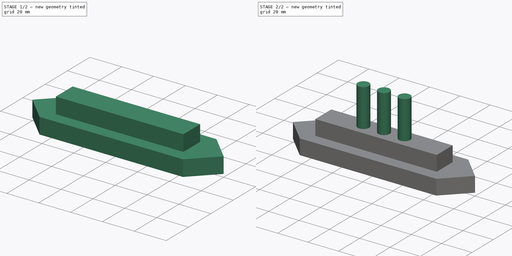
[diagram: build sequence overview — one tinted view per stage of 2, left to right]
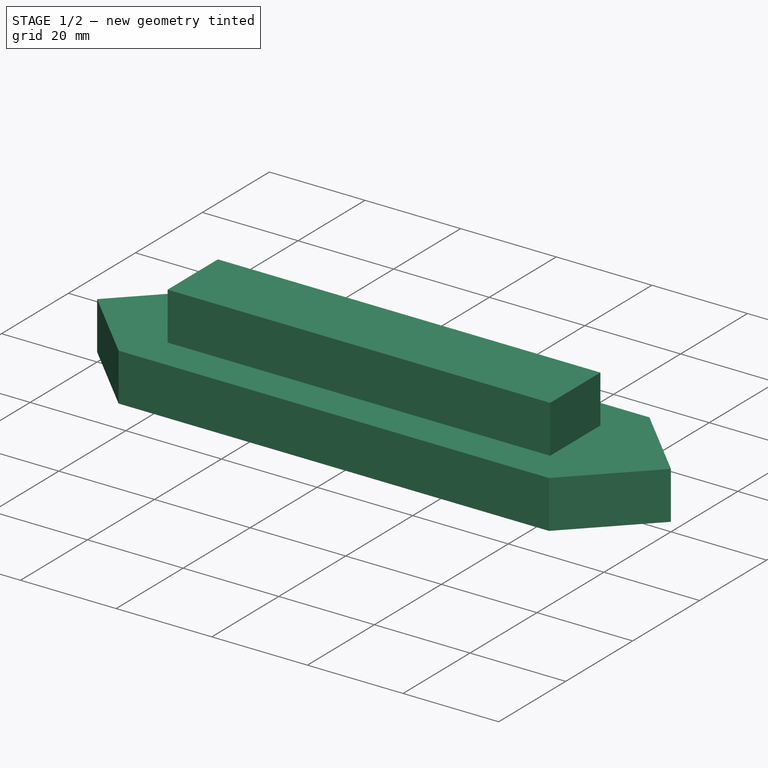
[diagram: stage 1 of 2 — iso view after this stage's code; geometry added in this stage tinted green]
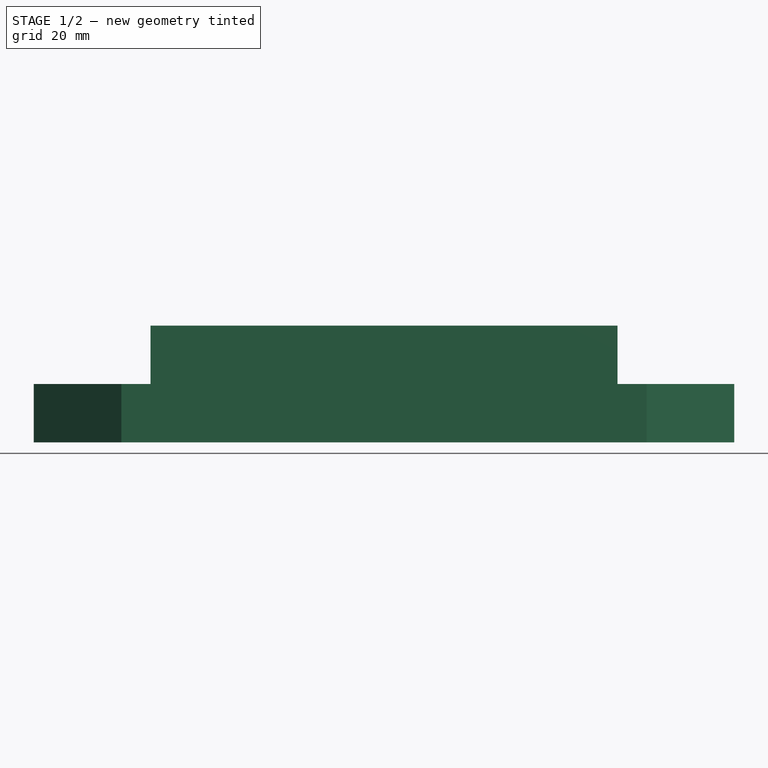
[diagram: stage 1 of 2 — front view after this stage's code; geometry added in this stage tinted green]
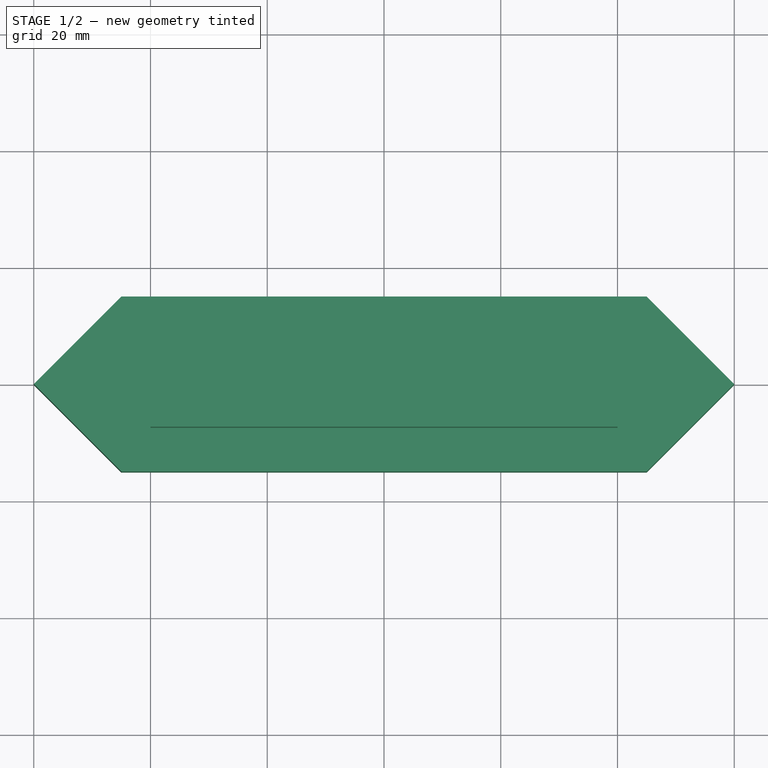
[diagram: stage 1 of 2 — top view after this stage's code; geometry added in this stage tinted green]
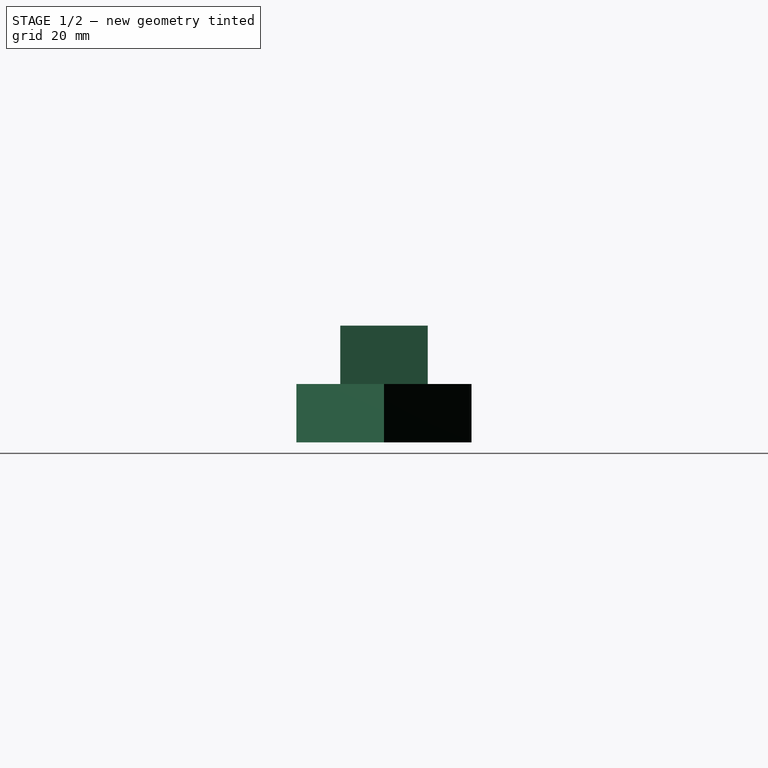
[diagram: stage 1 of 2 — right view after this stage's code; geometry added in this stage tinted green]
FCSTD DOCUMENT  (FreeCAD 1.1R38926 (Git))
Label: Кораблик
License: All rights reserved
LicenseURL: https://en.wikipedia.org/wiki/All_rights_reserved
objects: Sketcher::SketchObject×3, PartDesign::Pad×2, PartDesign::Pocket×1, PartDesign::Body×1
note: 16 computed .brp shape members not serialized (recipe doc carries the construction recipe); baked Part::Feature solids carry a one-line shape summary decoded from their .brp

FEATURE [Sketcher::SketchObject] Sketch
  ArcFitTolerance = 1e-06
  AttachmentSupport = -> [XY_Plane]
  FullyConstrained = false
  MakeInternals = false
  MapMode = 5
  sketch-geometry (8):
    g0: LineSegment StartX=-45 StartY=15 StartZ=0 EndX=-60 EndY=1.8e-15 EndZ=0
    g1: LineSegment StartX=-60 StartY=0 StartZ=0 EndX=-45 EndY=-15 EndZ=0
    g2: LineSegment StartX=-45 StartY=-15 StartZ=0 EndX=45 EndY=-15 EndZ=0
    g3: LineSegment StartX=45 StartY=-15 StartZ=0 EndX=60 EndY=0 EndZ=0
    g4: LineSegment StartX=60 StartY=0 StartZ=0 EndX=45 EndY=15 EndZ=0
    g5: LineSegment StartX=45 StartY=15 StartZ=0 EndX=-45 EndY=15 EndZ=0
    g6: LineSegment [constr] StartX=-45 StartY=15 StartZ=0 EndX=-88.88 EndY=15 EndZ=0
    g7: GeomPoint [constr] X=0 Y=0 Z=0
  constraints (20):
    c: Coincident(g0,g1)
    c: Coincident(g1,g2)
    c: Coincident(g2,g3)
    c: Coincident(g3,g4)
    c: Coincident(g4,g5)
    c: Coincident(g5,g0)
    c: Horizontal(g5)
    c: Horizontal(g2)
    c: Equal(g2,g5)
    c: Vertical(g1,g0)
    c: Horizontal(g3,g0)
    c: Equal(g4,g0)
    c: Equal(g0,g1)
    c: Coincident(g6,g0)
    c: Horizontal(g6)
    c: Angle(g6,g0) = 0.785398
    c: DistanceY(g1,g0) = 30
    c: DistanceX(g0,g3) = 120
    c: Symmetric(g0,g3,g7)
    c: Coincident(g7,g-1)
FEATURE [PartDesign::Pad] Pad
  Direction = (0,0,1)
  Length = 20
  Length2 = 10
  Profile = -> Sketch
  ReferenceAxis = -> Sketch [N_Axis]
  Refine = true
  Suppressed = false
  Type = 0
FEATURE [Sketcher::SketchObject] Sketch001
  ArcFitTolerance = 1e-06
  AttachmentSupport = -> [Pad]
  ExternalGeometry = -> [Pad]
  FullyConstrained = true
  MakeInternals = false
  MapMode = 5
  Placement = pos=(0,0,20) rot=(0,0,1;0rad)
  sketch-geometry (10):
    g0: LineSegment StartX=-45 StartY=15 StartZ=0 EndX=45 EndY=15 EndZ=0
    g1: LineSegment StartX=45 StartY=15 StartZ=0 EndX=60 EndY=0 EndZ=0
    g2: LineSegment StartX=60 StartY=0 StartZ=0 EndX=45 EndY=-15 EndZ=0
    g3: LineSegment StartX=45 StartY=-15 StartZ=0 EndX=-45 EndY=-15 EndZ=0
    g4: LineSegment StartX=-45 StartY=-15 StartZ=0 EndX=-60 EndY=0 EndZ=0
    g5: LineSegment StartX=-60 StartY=0 StartZ=0 EndX=-45 EndY=15 EndZ=0
    g6: LineSegment StartX=-40 StartY=7.5 StartZ=0 EndX=-40 EndY=-7.5 EndZ=0
    g7: LineSegment StartX=-40 StartY=-7.5 StartZ=0 EndX=40 EndY=-7.5 EndZ=0
    g8: LineSegment StartX=40 StartY=-7.5 StartZ=0 EndX=40 EndY=7.5 EndZ=0
    g9: LineSegment StartX=40 StartY=7.5 StartZ=0 EndX=-40 EndY=7.5 EndZ=0
  constraints (25):
    c: Coincident(g-4,g0)
    c: Coincident(g0,g-8)
    c: Coincident(g0,g1)
    c: Coincident(g1,g-8)
    c: Coincident(g1,g2)
    c: Coincident(g2,g-7)
    c: Coincident(g2,g3)
    c: Coincident(g3,g-6)
    c: Coincident(g3,g4)
    c: Coincident(g4,g-5)
    c: Coincident(g4,g5)
    c: Coincident(g5,g0)
    c: DistanceX(g4,g0) = 15
    c: DistanceX(g0,g0) = 90
    c: Coincident(g6,g7)
    c: Coincident(g7,g8)
    c: Coincident(g8,g9)
    c: Coincident(g9,g6)
    c: Vertical(g6)
    c: Vertical(g8)
    c: Horizontal(g7)
    c: Horizontal(g9)
    c: DistanceX(g9,g9) = 80
    c: DistanceY(g6,g6) = 15
    c: Symmetric(g6,g8,g-1)
FEATURE [PartDesign::Pocket] Pocket
  BaseFeature = -> Pad
  Direction = (0,0,-1)
  Length = 10
  Length2 = 5
  Profile = -> Sketch001
  ReferenceAxis = -> Sketch001 [N_Axis]
  Refine = true
  Suppressed = false
  Type = 0
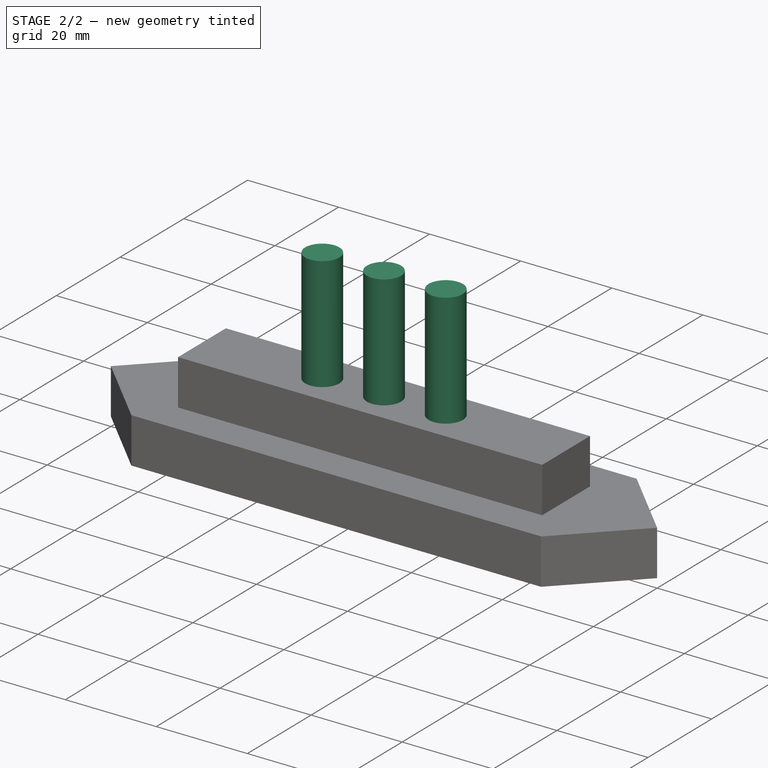
[diagram: stage 2 of 2 — iso view after this stage's code; geometry added in this stage tinted green]
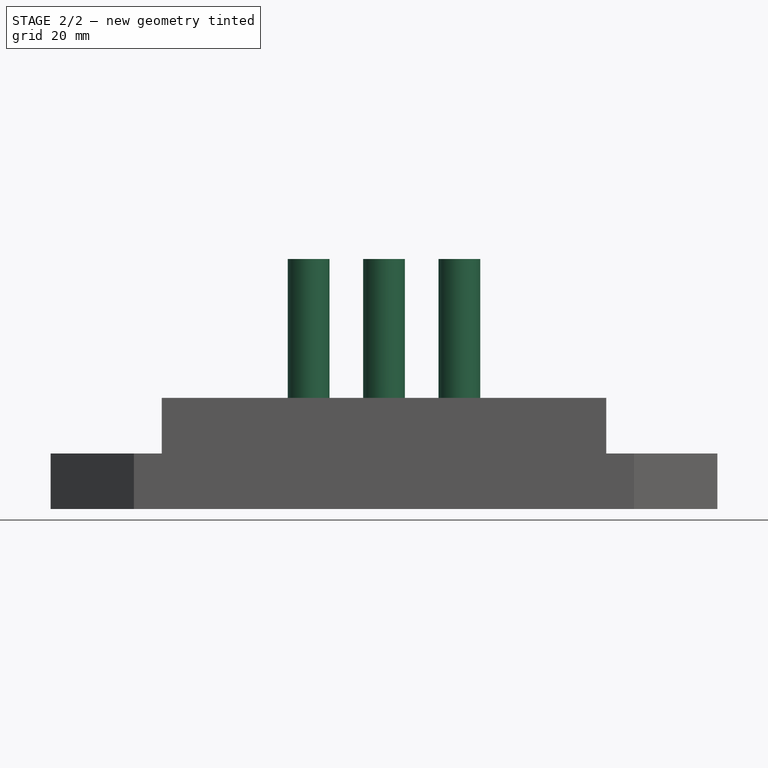
[diagram: stage 2 of 2 — front view after this stage's code; geometry added in this stage tinted green]
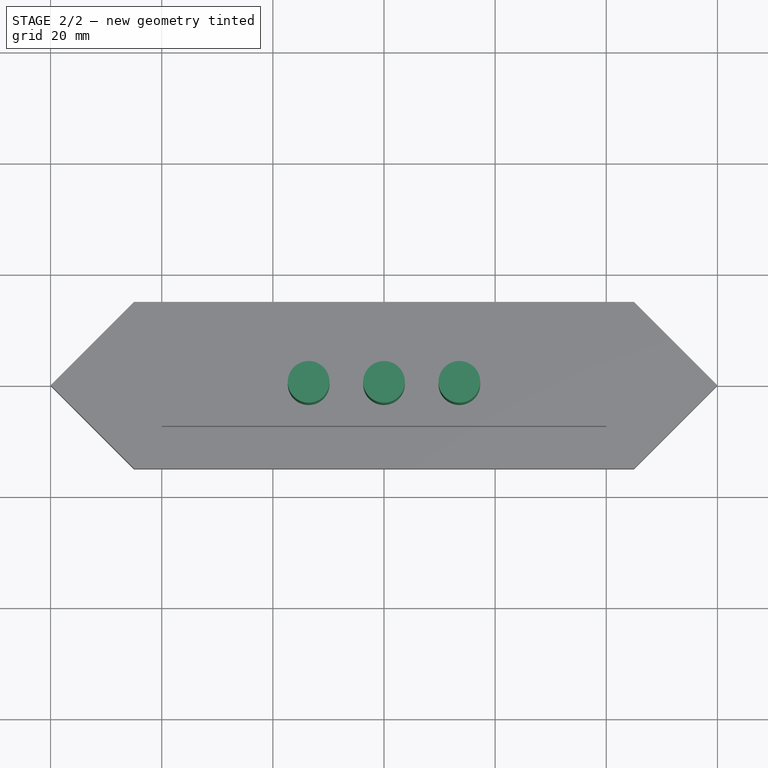
[diagram: stage 2 of 2 — top view after this stage's code; geometry added in this stage tinted green]
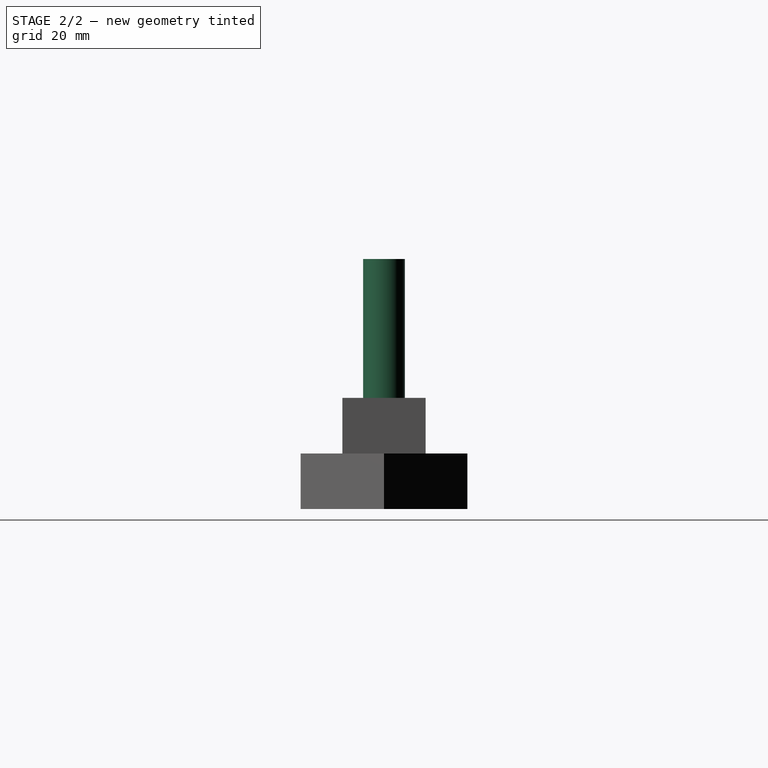
[diagram: stage 2 of 2 — right view after this stage's code; geometry added in this stage tinted green]
FEATURE [Sketcher::SketchObject] Sketch002
  ArcFitTolerance = 1e-06
  AttachmentSupport = -> [Pocket]
  ExternalGeometry = -> [Pocket]
  FullyConstrained = false
  MakeInternals = false
  MapMode = 5
  Placement = pos=(0,0,20) rot=(0,0,1;0rad)
  sketch-geometry (8):
    g0: Circle CenterX=-13.5634 CenterY=0 CenterZ=0 NormalX=0 NormalY=0 NormalZ=1 AngleXU=0 Radius=3.75
    g1: Circle CenterX=0 CenterY=0 CenterZ=0 NormalX=0 NormalY=0 NormalZ=1 AngleXU=0 Radius=3.75
    g2: Circle CenterX=13.5634 CenterY=0 CenterZ=0 NormalX=0 NormalY=0 NormalZ=1 AngleXU=0 Radius=3.75
    g3: LineSegment [constr] StartX=-13.5634 StartY=0 StartZ=0 EndX=0 EndY=0 EndZ=0
    g4: LineSegment [constr] StartX=0 StartY=0 StartZ=0 EndX=13.5634 EndY=0 EndZ=0
    g5: GeomPoint [constr] X=-13.5634 Y=3.75 Z=0
    g6: GeomPoint [constr] X=0 Y=3.75 Z=0
    g7: GeomPoint [constr] X=13.5634 Y=3.75 Z=0
  constraints (17):
    c: PointOnObject(g0,g-1)
    c: Coincident(g1,g-1)
    c: PointOnObject(g2,g-1)
    c: Equal(g1,g0)
    c: Equal(g0,g2)
    c: Coincident(g3,g0)
    c: Coincident(g3,g1)
    c: Coincident(g3,g4)
    c: Coincident(g4,g2)
    c: Equal(g3,g4)
    c: PointOnObject(g6,g1)
    c: PointOnObject(g7,g2)
    c: PointOnObject(g5,g0)
    c: Horizontal(g6,g7)
    c: Horizontal(g6,g5)
    c: PointOnObject(g6,g-2)
    c: Diameter(g2) = 7.5
FEATURE [PartDesign::Pad] Pad001
  BaseFeature = -> Pocket
  Direction = (0,0,1)
  Length = 25
  Length2 = 10
  Profile = -> Sketch002
  ReferenceAxis = -> Sketch002 [N_Axis]
  Refine = true
  Suppressed = false
  Type = 0
FEATURE [PartDesign::Body] Body  label="Тело"
  AllowCompound = false
  Group = -> [Sketch,Pad,Sketch001,Pocket,Sketch002,Pad001]
  Origin = -> Origin
  Tip = -> Pad001
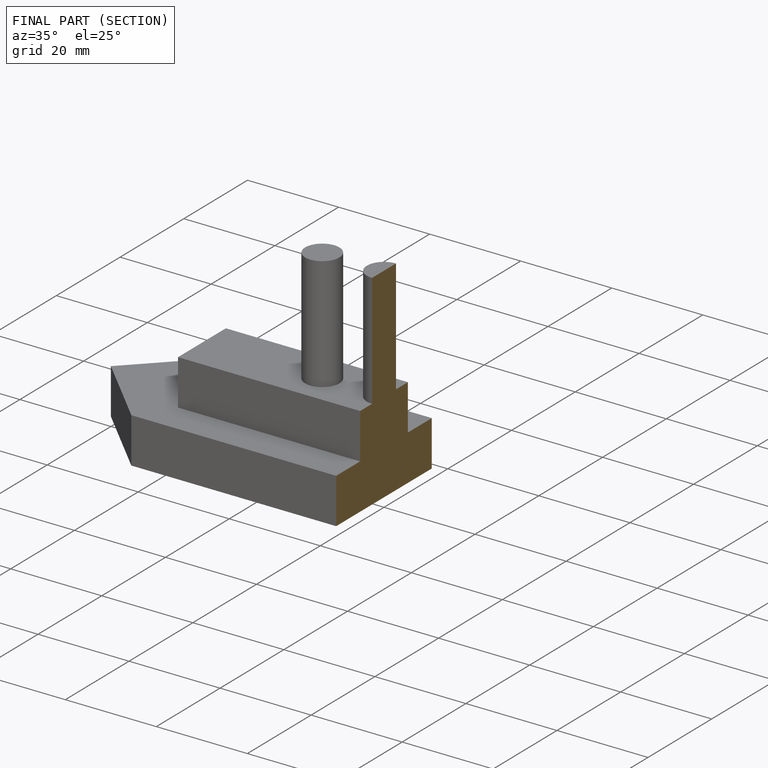
[diagram: finished part — half-section view (interior)]
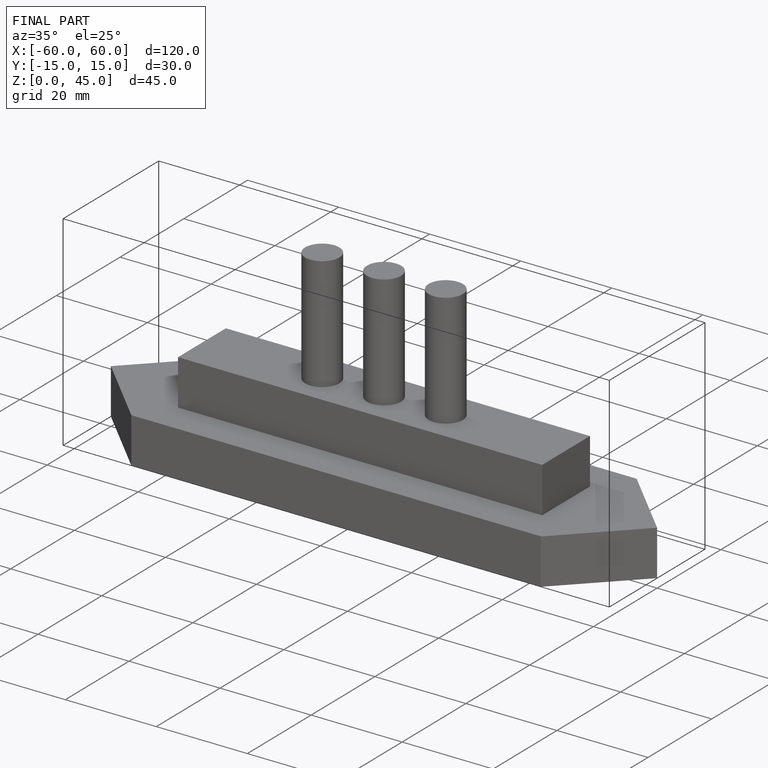
[diagram: finished part — iso view with bounding-box wireframe]
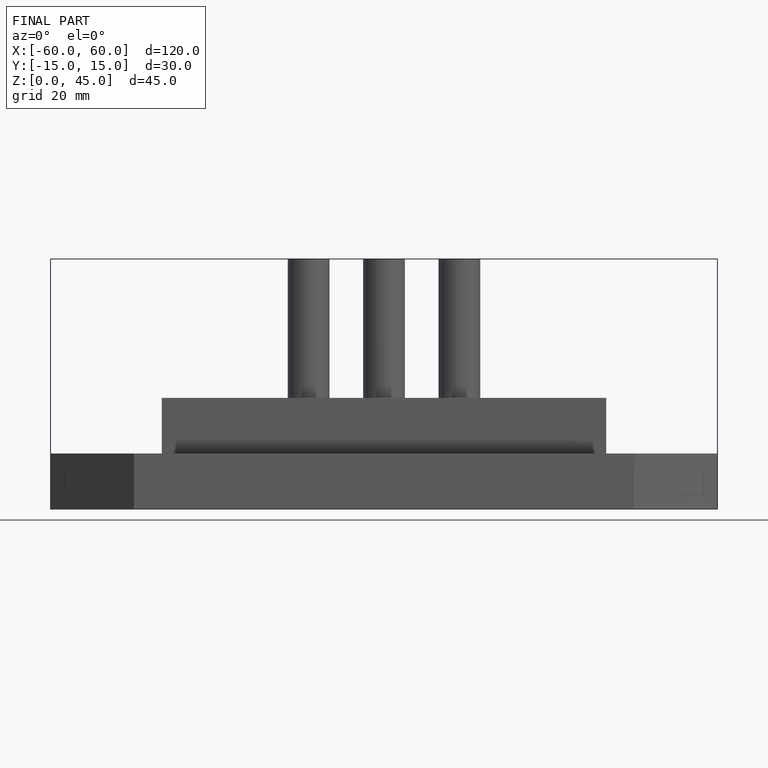
[diagram: finished part — front view with bounding-box wireframe]
